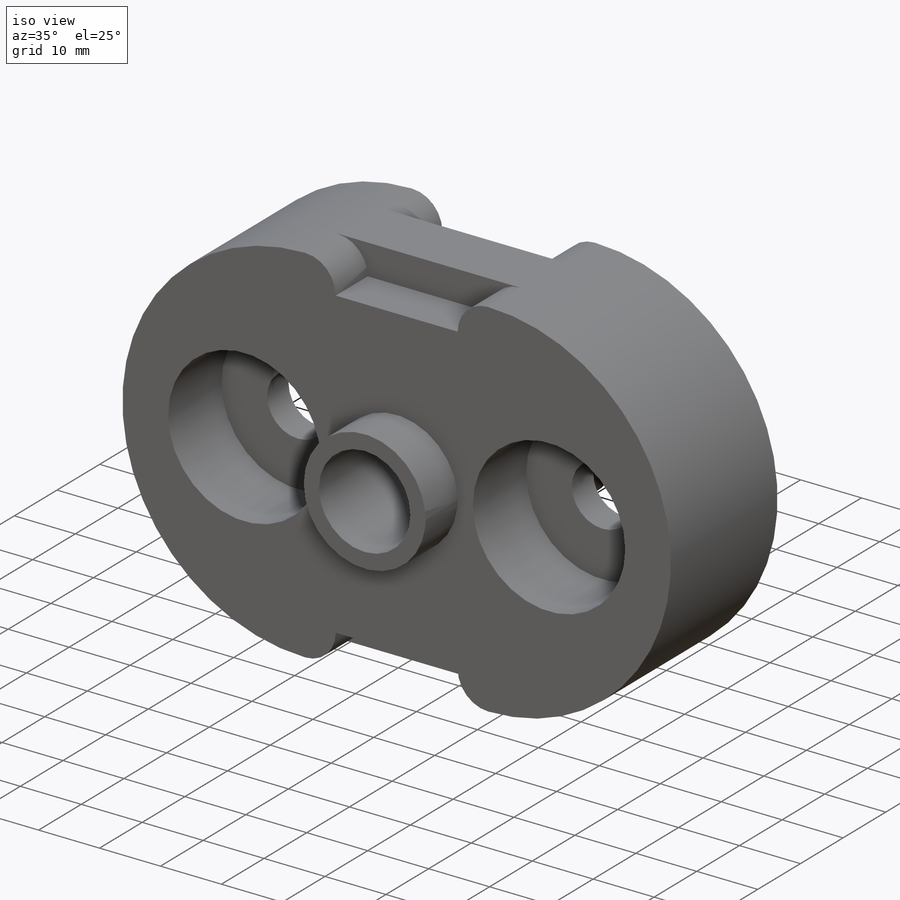
[diagram: iso view]
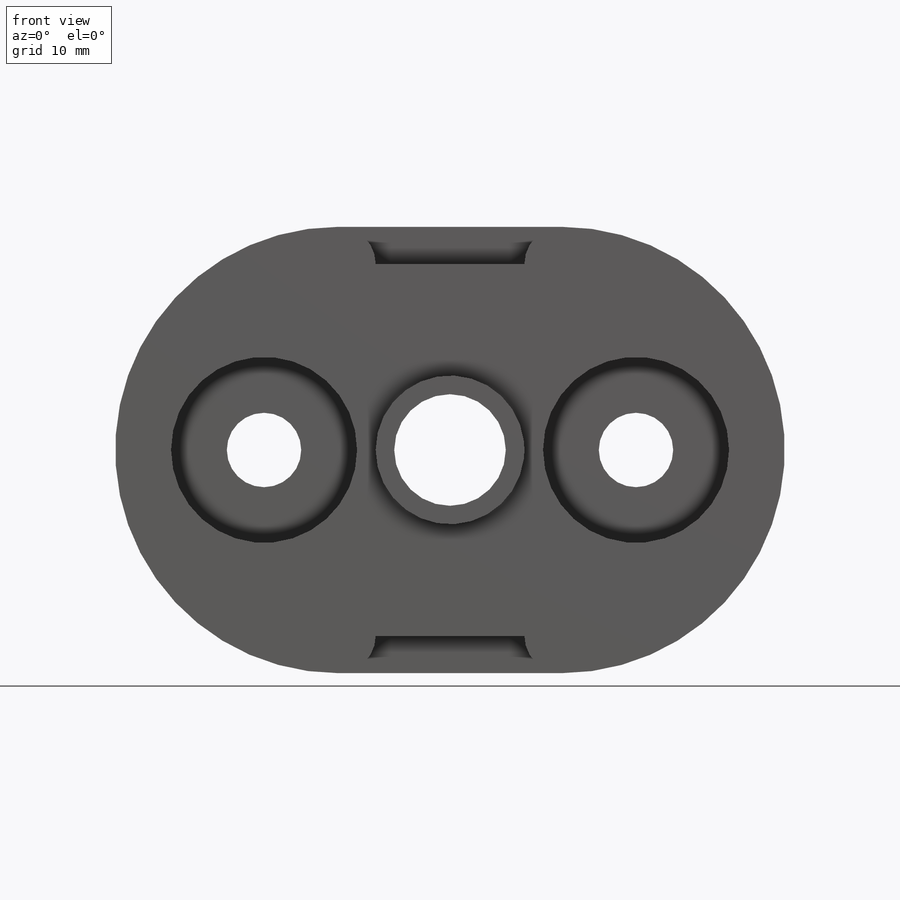
[diagram: front view]
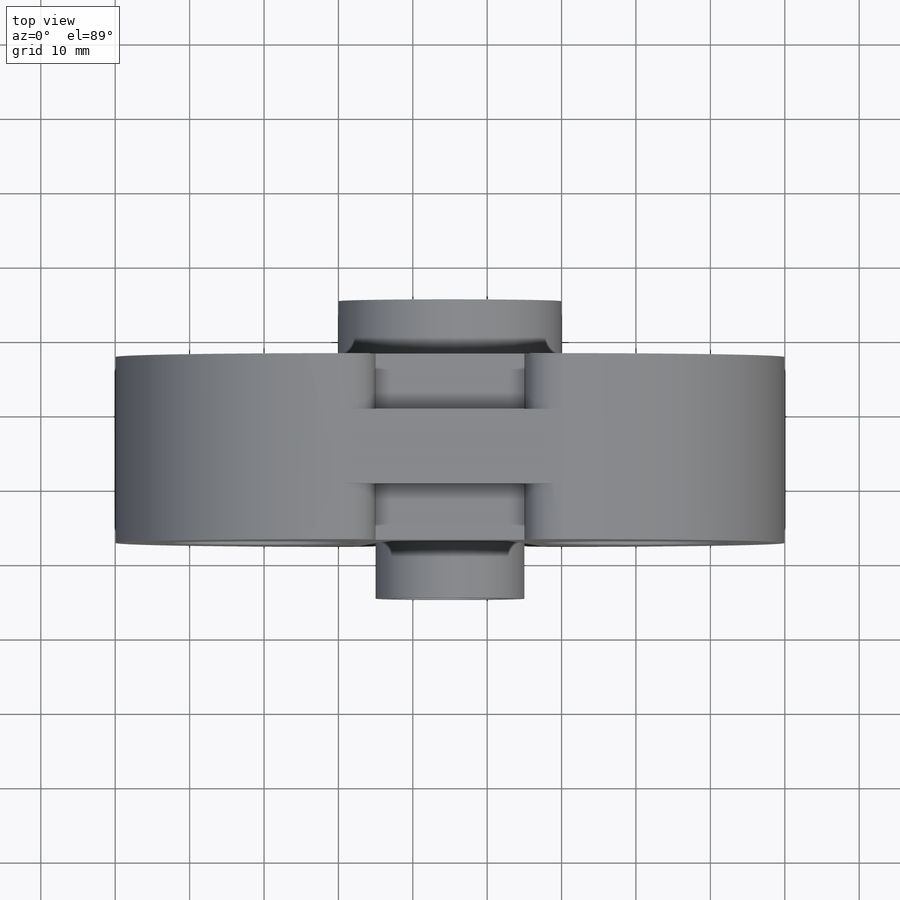
[diagram: top view]
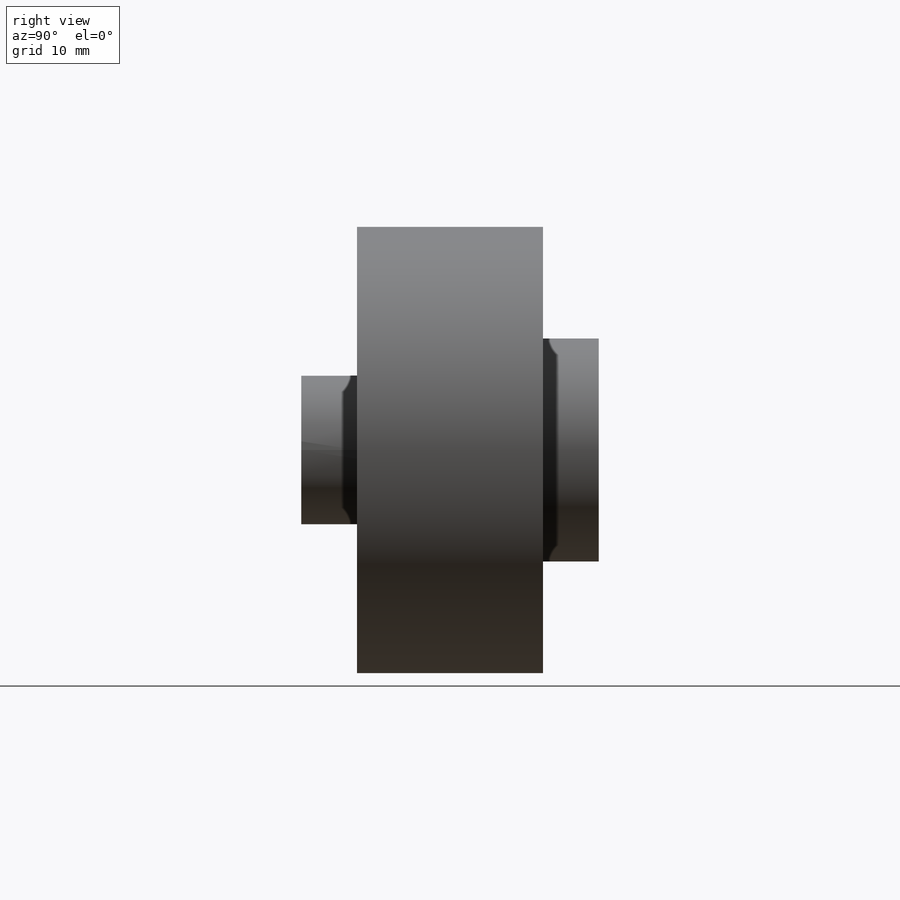
[diagram: right view]
SOLIDWORKS PART (.sldprt)
format: sldprt  version: not decoded by parser v0  size: 314,880 bytes
history: native  units: mm
features: sketch x10, extrude x5, cut_extrude x5, material x1 (+13 scaffold rows collapsed)
feature tree (34):
  scaffold x13  (default folders/planes/origin — collapsed)
  material  "Material <not specified>"
  sketch  "Sketch1"  dims[D2=30.0mm D1=30.0mm]
  extrude  "Boss-Extrude1"  Depth=10mm
  sketch  "Sketch2"  dims[c1.D1=30.0mm c1.D2=30.0mm c1.D7=~4.665612mm c1.D9=30.0mm c2.D1=5.0mm c2.D2=20.0mm c2.D3=5.0mm c2.D4=20.0mm c2.D5=5.0mm c2.D6=5.0mm c3.D2=5.0mm c3.D5=5.0mm c3.D7=5.0mm c3.D8=5.0mm c3.D9=30.0mm]
  extrude  "Boss-Extrude2"  Depth=7.5mm
  sketch  "Sketch3"  dims[c1.D7=~8.748488mm c1.D9=~4.264048mm c1.D10=30.0mm c1.D1=20.0mm c1.D2=5.0mm c1.D3=5.0mm c1.D4=20.0mm c1.D5=5.0mm c1.D6=5.0mm c2.D7=5.0mm c2.D8=5.0mm c2.D9=5.0mm]
  extrude  "Boss-Extrude3"  Depth=7.5mm
  sketch  "Sketch4"  dims[c1.D5=22.5mm c1.D3=30.0mm c2.D5=30.0mm c2.D1=5.0mm c2.D2=5.0mm c2.D3=5.0mm c2.D4=5.0mm c3.D5=40.0mm c3.D1=5.0mm c3.D2=5.0mm c3.D3=5.0mm c3.D4=5.0mm c4.D5=5.0mm]
  cut_extrude  "Cut-Extrude1"  Depth=7.5mm
  sketch  "Sketch5"  dims[c1.D1=25.0mm c1.D4=~24.015255mm c1.D2=10.0mm c1.D3=30.0mm c2.D4=30.0mm c2.D5=10.0mm]
  cut_extrude  "Cut-Extrude3"  Depth=12.5mm
  sketch  "Sketch6"  dims[D1=10.0mm D2=10.0mm]
  cut_extrude  "Cut-Extrude4"  Depth=17.5mm
  sketch  "Sketch7"  dims[D1=20.0mm D2=25.0mm]
  extrude  "Boss-Extrude4"  Depth=7.5mm
  sketch  "Sketch8"  dims[D1=15.0mm]
  cut_extrude  "Cut-Extrude5"  Depth=25mm
  sketch  "Sketch10"  dims[D1=30.0mm]
  extrude  "Boss-Extrude6"  Depth=15mm
  sketch  "Sketch11"  dims[D1=15.0mm]
  cut_extrude  "Cut-Extrude6"  Depth=20mm
decode coverage: 20 of 20 modeling features carry decoded parameters
note: ~ marks probable driven/reference dimensions
note: suppression state not decoded; provenance and decode notes live in map.json
